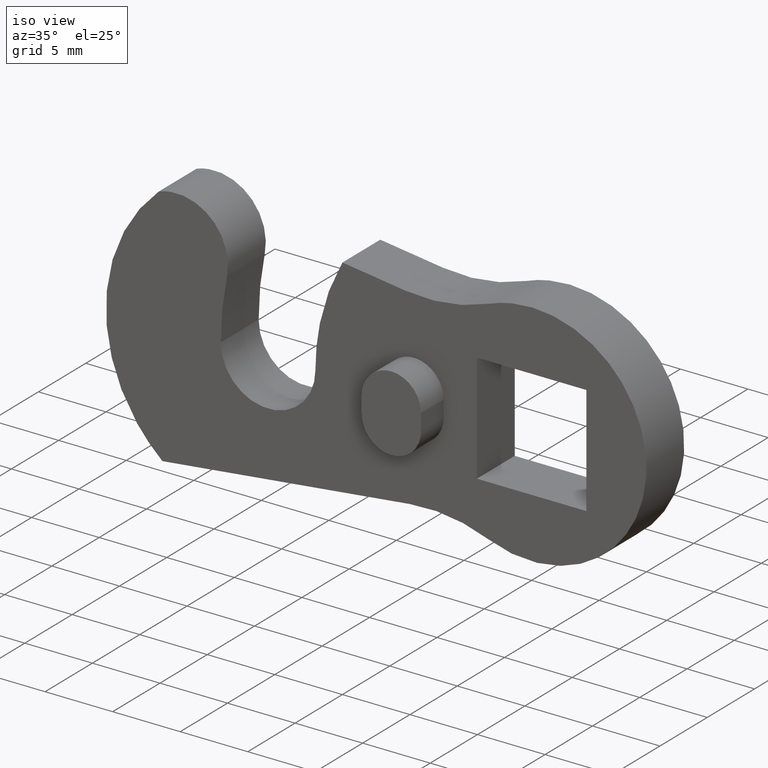
[diagram: clean part render]
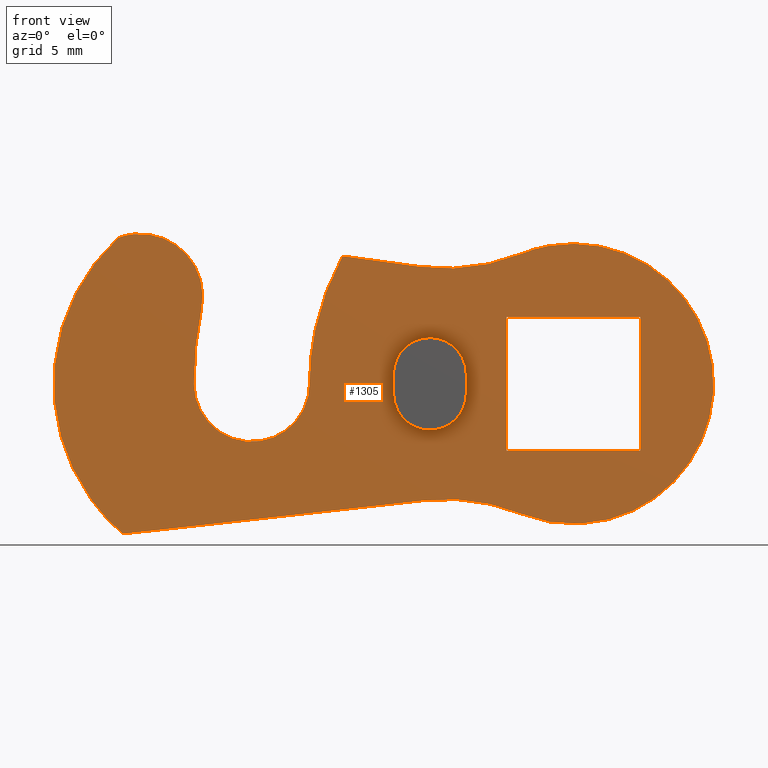
[diagram: tour spotlight — one face highlighted and labeled with its STEP entity id]
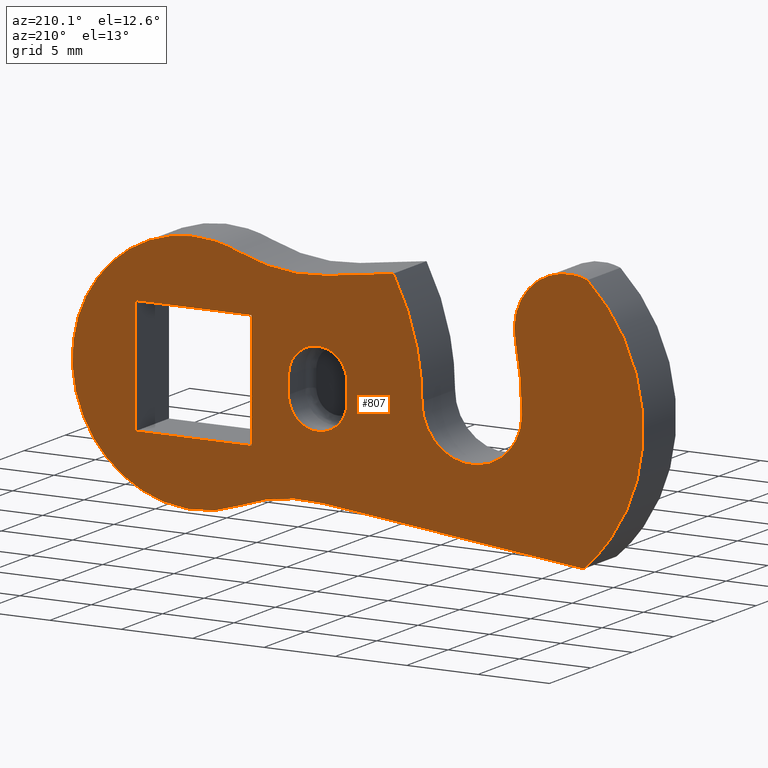
[diagram: tour spotlight — one face highlighted and labeled with its STEP entity id]
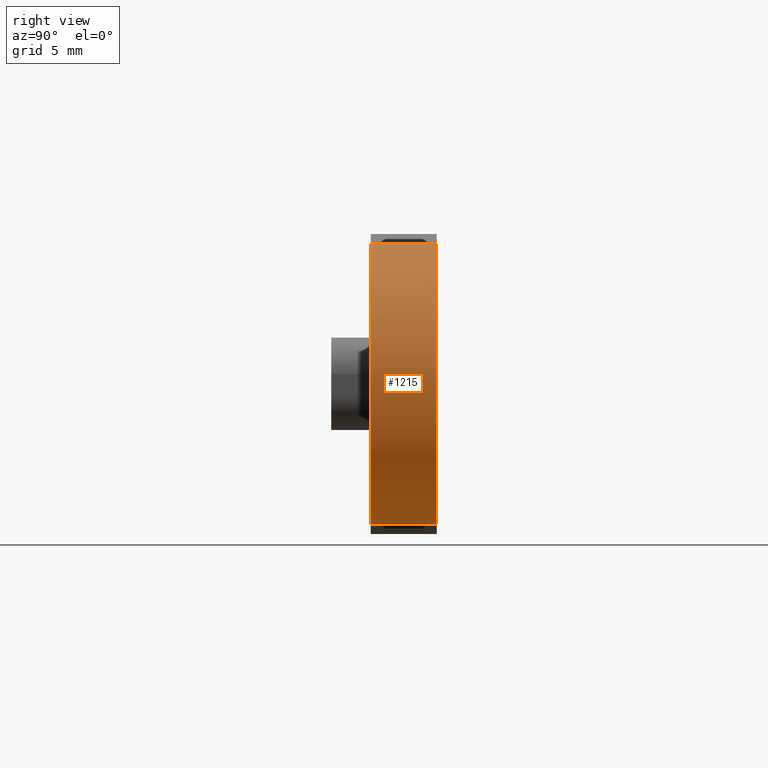
[diagram: tour spotlight — one face highlighted and labeled with its STEP entity id]
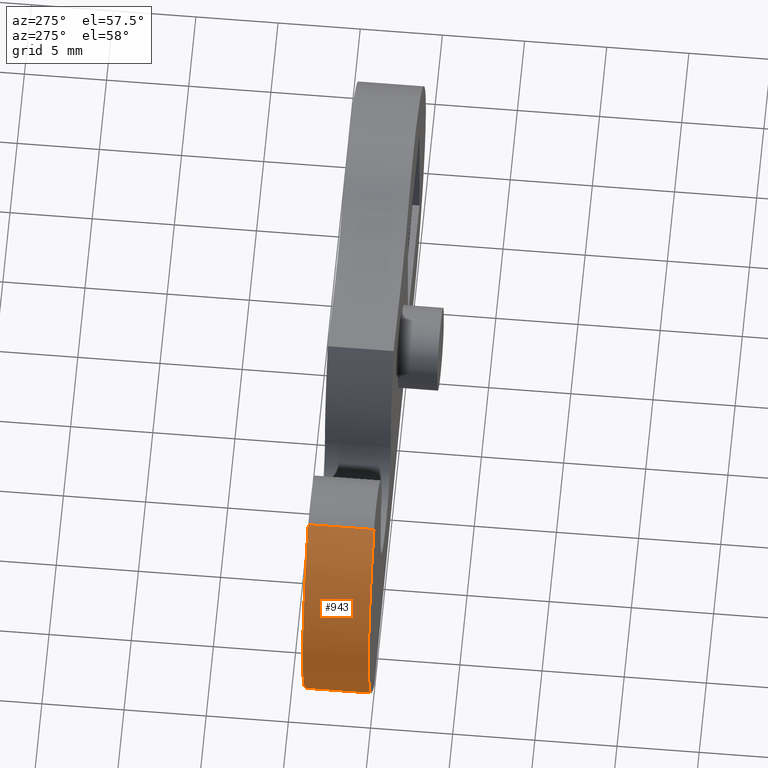
[diagram: tour spotlight — one face highlighted and labeled with its STEP entity id]
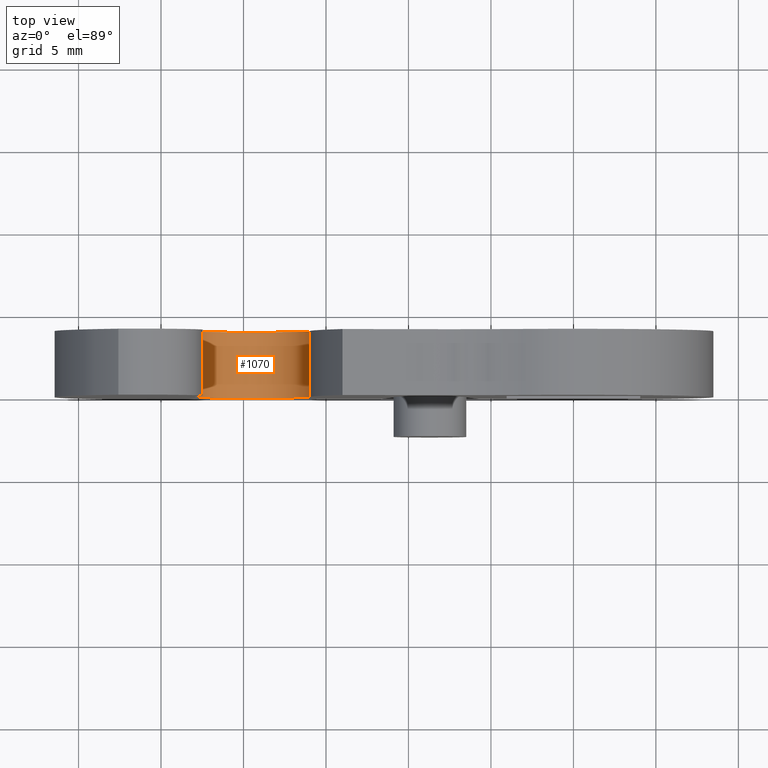
[diagram: tour spotlight — one face highlighted and labeled with its STEP entity id]
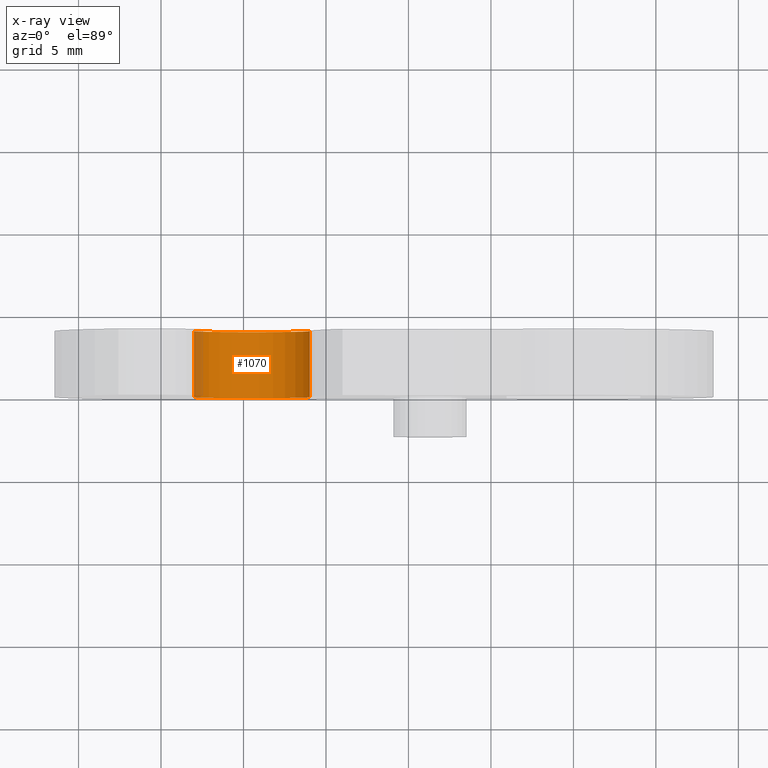
[diagram: x-ray of the same camera — body ghosted, this tour face saturated]
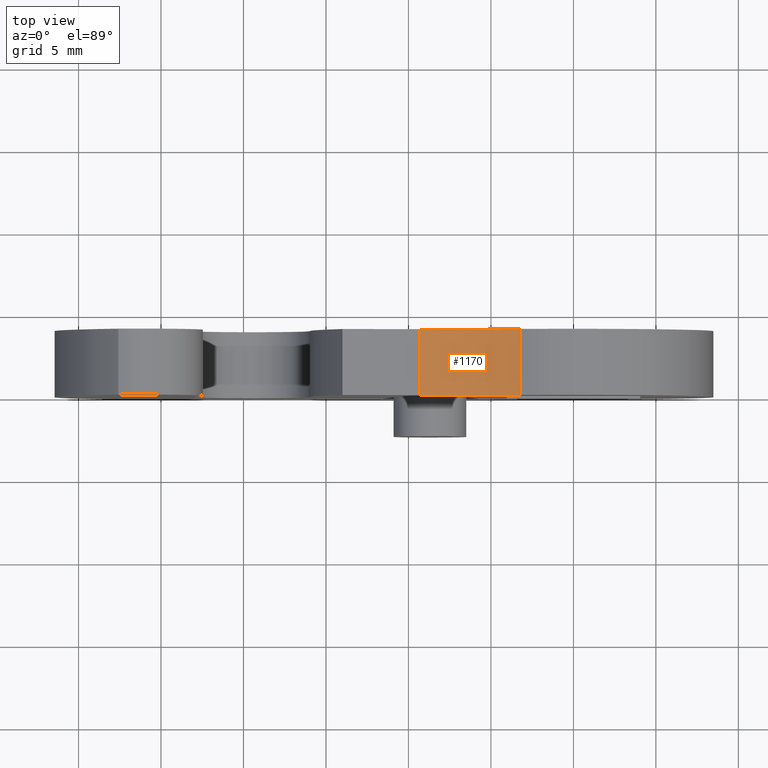
[diagram: tour spotlight — one face highlighted and labeled with its STEP entity id]
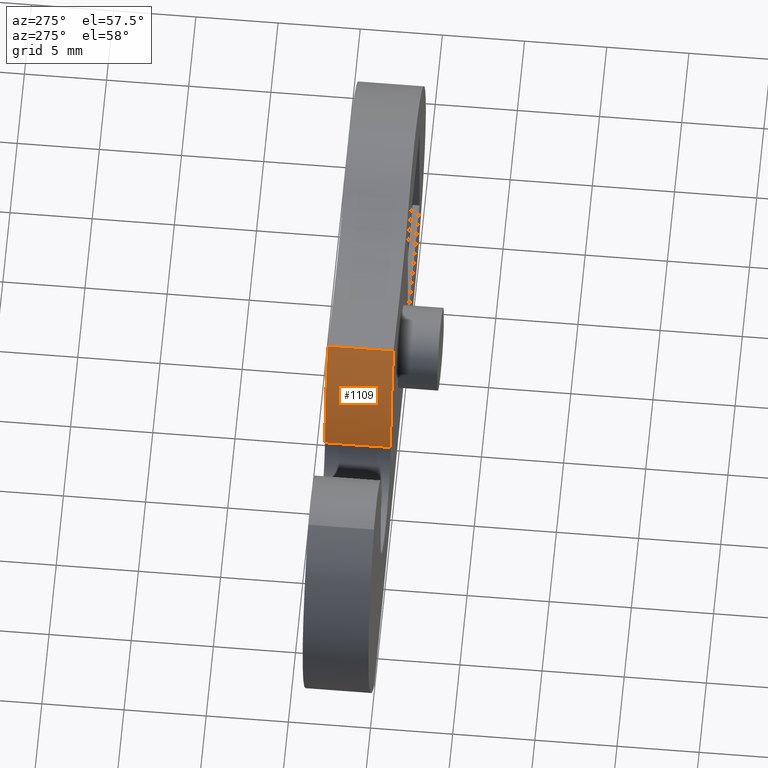
[diagram: tour spotlight — one face highlighted and labeled with its STEP entity id]
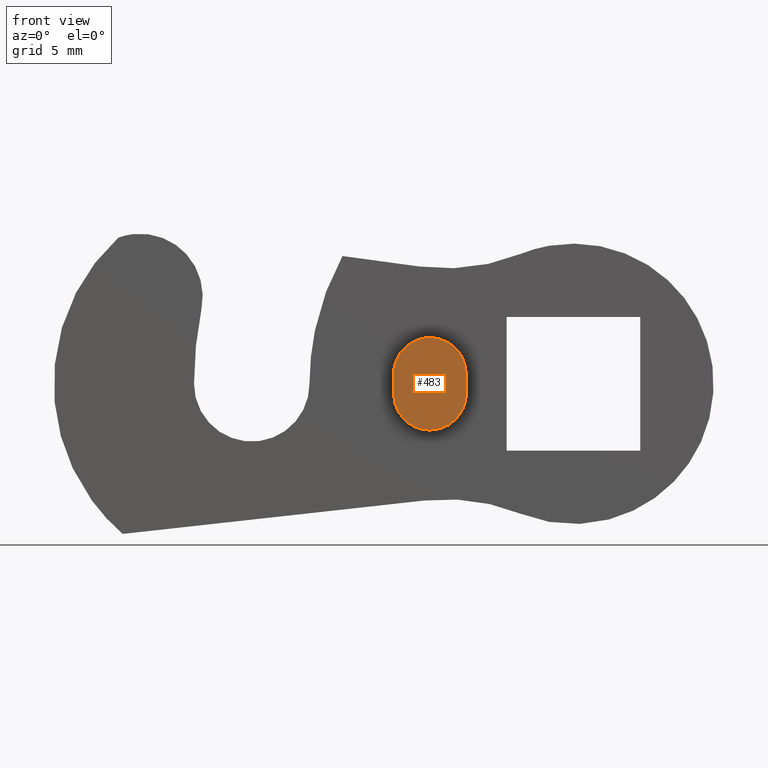
[diagram: tour spotlight — one face highlighted and labeled with its STEP entity id]
A machine part: a face-by-face anatomy tour. The part has 30 B-rep faces; the first image is the clean iso view, then the 8 largest visible faces are spotlighted one at a time (largest first), each with its STEP entity span.

Face 1 — front view, entity #1305. In plain terms, the highlighted face is a freeform B-spline surface patch.
Definition (entity closure, byte-faithful):
#502=CARTESIAN_POINT('',(-10.900000517722200,0.0,-0.600000028498485));
#503=VERTEX_POINT('',#502);
#504=CARTESIAN_POINT('',(-6.500000308733420,0.0,-0.600000028498486));
#505=VERTEX_POINT('',#504);
#506=CARTESIAN_POINT('',(-10.900000517722210,0.0,-0.600000028498485));
#507=CARTESIAN_POINT('',(-10.900000517722205,0.0,-2.800000132992881));
#508=CARTESIAN_POINT('',(-8.700000413227810,0.0,-2.800000132992880));
#509=CARTESIAN_POINT('',(-6.500000308733416,0.0,-2.800000132992881));
#510=CARTESIAN_POINT('',(-6.500000308733416,0.0,-0.600000028498485));
#518=(BOUNDED_CURVE()B_SPLINE_CURVE(2,(#506,#507,#508,#509,#510),.UNSPECIFIED.,.F.,.U.)B_SPLINE_CURVE_WITH_KNOTS((3,2,3),(0.0,0.500000000000000,1.0),.UNSPECIFIED.)CURVE()GEOMETRIC_REPRESENTATION_ITEM()RATIONAL_B_SPLINE_CURVE((1.0,0.707106781186548,1.0,0.707106781186548,1.0))REPRESENTATION_ITEM(''));
#519=EDGE_CURVE('',#503,#505,#518,.T.);
#540=CARTESIAN_POINT('',(-10.900000517722200,0.0,0.600000028498457));
#541=VERTEX_POINT('',#540);
#542=CARTESIAN_POINT('',(-10.900000517722200,0.0,0.600000028498457));
#543=CARTESIAN_POINT('',(-10.900000517722200,0.0,-0.600000028498485));
#544=QUASI_UNIFORM_CURVE('',1,(#542,#543),.UNSPECIFIED.,.F.,.U.);
#545=EDGE_CURVE('',#541,#503,#544,.T.);
#575=CARTESIAN_POINT('',(-6.500000308733430,0.0,0.600000028498457));
#576=VERTEX_POINT('',#575);
#577=CARTESIAN_POINT('',(-6.500000308733426,0.0,0.600000028498457));
#578=CARTESIAN_POINT('',(-6.500000308733426,0.0,2.800000132992842));
#579=CARTESIAN_POINT('',(-8.700000413227810,0.0,2.800000132992842));
#580=CARTESIAN_POINT('',(-10.900000517722194,0.0,2.800000132992842));
#581=CARTESIAN_POINT('',(-10.900000517722191,0.0,0.600000028498457));
#589=(BOUNDED_CURVE()B_SPLINE_CURVE(2,(#577,#578,#579,#580,#581),.UNSPECIFIED.,.F.,.U.)B_SPLINE_CURVE_WITH_KNOTS((3,2,3),(0.0,0.500000000000000,1.0),.UNSPECIFIED.)CURVE()GEOMETRIC_REPRESENTATION_ITEM()RATIONAL_B_SPLINE_CURVE((1.0,0.707106781186547,1.0,0.707106781186547,1.0))REPRESENTATION_ITEM(''));
#590=EDGE_CURVE('',#576,#541,#589,.T.);
#607=CARTESIAN_POINT('',(-6.500000308733420,0.0,-0.600000028498486));
#608=CARTESIAN_POINT('',(-6.500000308733430,0.0,0.600000028498457));
#609=QUASI_UNIFORM_CURVE('',1,(#607,#608),.UNSPECIFIED.,.F.,.U.);
#610=EDGE_CURVE('',#505,#576,#609,.T.);
#813=CARTESIAN_POINT('',(4.050000192364680,0.0,-4.050000192364680));
#814=VERTEX_POINT('',#813);
#815=CARTESIAN_POINT('',(-4.050000192364665,0.0,-4.050000192364690));
#816=VERTEX_POINT('',#815);
#817=CARTESIAN_POINT('',(4.050000192364680,0.0,-4.050000192364680));
#818=CARTESIAN_POINT('',(-4.050000192364665,0.0,-4.050000192364690));
#819=QUASI_UNIFORM_CURVE('',1,(#817,#818),.UNSPECIFIED.,.F.,.U.);
#820=EDGE_CURVE('',#814,#816,#819,.T.);
#850=CARTESIAN_POINT('',(-3.191605924908355,0.0,-7.878049154674630));
#851=VERTEX_POINT('',#850);
#852=CARTESIAN_POINT('',(-9.018262071894240,0.0,-7.072916441609590));
#853=VERTEX_POINT('',#852);
#854=CARTESIAN_POINT('',(-3.191605924908361,0.0,-7.878049154674652));
#855=CARTESIAN_POINT('',(-6.003167672268203,0.0,-6.739011182845041));
#856=CARTESIAN_POINT('',(-9.018262071894240,0.0,-7.072916441609590));
#864=(BOUNDED_CURVE()B_SPLINE_CURVE(2,(#854,#855,#856),.UNSPECIFIED.,.F.,.U.)CURVE()GEOMETRIC_REPRESENTATION_ITEM()QUASI_UNIFORM_CURVE()RATIONAL_B_SPLINE_CURVE((1.0,0.969501807510952,1.0))REPRESENTATION_ITEM(''));
#865=EDGE_CURVE('',#851,#853,#864,.T.);
#886=CARTESIAN_POINT('',(-27.322405020386050,0.0,-9.100000432227068));
#887=VERTEX_POINT('',#886);
#888=CARTESIAN_POINT('',(-27.322405020386050,0.0,-9.100000432227068));
#889=CARTESIAN_POINT('',(-9.018262071894240,0.0,-7.072916441609590));
#890=QUASI_UNIFORM_CURVE('',1,(#888,#889),.UNSPECIFIED.,.F.,.U.);
#891=EDGE_CURVE('',#887,#853,#890,.T.);
#917=CARTESIAN_POINT('',(-27.588748733254949,0.0,8.864094572663710));
#918=VERTEX_POINT('',#917);
#919=CARTESIAN_POINT('',(-27.588748733254949,0.0,8.864094572663710));
#920=CARTESIAN_POINT('',(-31.578760255066737,0.0,5.223091345249449));
#921=CARTESIAN_POINT('',(-31.498682772231380,0.0,-0.177897827390562));
#922=CARTESIAN_POINT('',(-31.418605289396009,0.0,-5.578887000030570));
#923=CARTESIAN_POINT('',(-27.322405020386039,0.0,-9.100000432227047));
#931=(BOUNDED_CURVE()B_SPLINE_CURVE(2,(#919,#920,#921,#922,#923),.UNSPECIFIED.,.F.,.U.)B_SPLINE_CURVE_WITH_KNOTS((3,2,3),(0.0,0.500000000000000,1.0),.UNSPECIFIED.)CURVE()GEOMETRIC_REPRESENTATION_ITEM()RATIONAL_B_SPLINE_CURVE((1.0,0.911876497854046,1.0,0.911876497854046,1.0))REPRESENTATION_ITEM(''));
#932=EDGE_CURVE('',#918,#887,#931,.T.);
#958=CARTESIAN_POINT('',(-22.545756322395651,0.0,4.548507678729610));
#959=VERTEX_POINT('',#958);
#960=CARTESIAN_POINT('',(-22.545756322395651,0.0,4.548507678729610));
#961=CARTESIAN_POINT('',(-22.104412871510750,0.0,6.736131093015298));
#962=CARTESIAN_POINT('',(-23.800003801249868,0.0,8.187148544101389));
#963=CARTESIAN_POINT('',(-25.495594730988987,0.0,9.638165995187480));
#964=CARTESIAN_POINT('',(-27.588748733254949,0.0,8.864094572663721));
#972=(BOUNDED_CURVE()B_SPLINE_CURVE(2,(#960,#961,#962,#963,#964),.UNSPECIFIED.,.F.,.U.)B_SPLINE_CURVE_WITH_KNOTS((3,2,3),(0.0,0.500000000000000,1.0),.UNSPECIFIED.)CURVE()GEOMETRIC_REPRESENTATION_ITEM()RATIONAL_B_SPLINE_CURVE((1.0,0.862290535424148,1.0,0.862290535424148,1.0))REPRESENTATION_ITEM(''));
#973=EDGE_CURVE('',#959,#918,#972,.T.);
#999=CARTESIAN_POINT('',(-23.000001092441401,0.0,-5.727203E-014));
#1000=VERTEX_POINT('',#999);
#1001=CARTESIAN_POINT('',(-22.545756322395640,0.0,4.548507678729605));
#1002=CARTESIAN_POINT('',(-23.000001092441394,0.0,2.296935818344305));
#1003=CARTESIAN_POINT('',(-23.000001092441401,0.0,-5.727203E-014));
#1011=(BOUNDED_CURVE()B_SPLINE_CURVE(2,(#1001,#1002,#1003),.UNSPECIFIED.,.F.,.U.)CURVE()GEOMETRIC_REPRESENTATION_ITEM()QUASI_UNIFORM_CURVE()RATIONAL_B_SPLINE_CURVE((1.0,0.995050307353196,1.0))REPRESENTATION_ITEM(''));
#1012=EDGE_CURVE('',#959,#1000,#1011,.T.);
#1042=CARTESIAN_POINT('',(-16.000000759959200,0.0,1.959370E-015));
#1043=VERTEX_POINT('',#1042);
#1044=CARTESIAN_POINT('',(-23.000001092441369,0.0,-5.684342E-014));
#1045=CARTESIAN_POINT('',(-23.000001092441366,0.0,-2.020726038143088));
#1046=CARTESIAN_POINT('',(-21.250001009320819,0.0,-3.031089057214592));
#1047=CARTESIAN_POINT('',(-19.500000926200272,0.0,-4.041452076286098));
#1048=CARTESIAN_POINT('',(-17.750000843079729,0.0,-3.031089057214563));
#1049=CARTESIAN_POINT('',(-16.000000759959235,0.0,-2.020726038143048));
#1050=CARTESIAN_POINT('',(-16.000000759959200,0.0,1.959370E-015));
#1058=(BOUNDED_CURVE()B_SPLINE_CURVE(2,(#1044,#1045,#1046,#1047,#1048,#1049,#1050),.UNSPECIFIED.,.F.,.U.)B_SPLINE_CURVE_WITH_KNOTS((3,2,2,3),(0.0,0.333333333333333,0.666666666666667,1.0),.UNSPECIFIED.)CURVE()GEOMETRIC_REPRESENTATION_ITEM()RATIONAL_B_SPLINE_CURVE((1.0,0.866025403784437,1.0,0.866025403784437,1.0,0.866025403784437,1.0))REPRESENTATION_ITEM(''));
#1059=EDGE_CURVE('',#1000,#1043,#1058,.T.);
#1085=CARTESIAN_POINT('',(-13.998497258809200,0.0,7.748683682652581));
#1086=VERTEX_POINT('',#1085);
#1087=CARTESIAN_POINT('',(-13.998497258809200,0.0,7.748683682652583));
#1088=CARTESIAN_POINT('',(-16.000000759959200,0.0,4.132838408561590));
#1089=CARTESIAN_POINT('',(-16.000000759959200,0.0,0.0));
#1097=(BOUNDED_CURVE()B_SPLINE_CURVE(2,(#1087,#1088,#1089),.UNSPECIFIED.,.F.,.U.)CURVE()GEOMETRIC_REPRESENTATION_ITEM()QUASI_UNIFORM_CURVE()RATIONAL_B_SPLINE_CURVE((1.0,0.968221575136541,1.0))REPRESENTATION_ITEM(''));
#1098=EDGE_CURVE('',#1086,#1043,#1097,.T.);
#1115=CARTESIAN_POINT('',(-9.320007165965649,0.0,7.110208311423781));
#1116=VERTEX_POINT('',#1115);
#1117=CARTESIAN_POINT('',(-9.320007165965649,0.0,7.110208311423781));
#1118=CARTESIAN_POINT('',(-13.998497258809200,0.0,7.748683682652581));
#1119=QUASI_UNIFORM_CURVE('',1,(#1117,#1118),.UNSPECIFIED.,.F.,.U.);
#1120=EDGE_CURVE('',#1116,#1086,#1119,.T.);
#1146=CARTESIAN_POINT('',(-3.191605924907725,0.0,7.878049154674891));
#1147=VERTEX_POINT('',#1146);
#1148=CARTESIAN_POINT('',(-9.320007165965652,0.0,7.110208311423760));
#1149=CARTESIAN_POINT('',(-6.153562302074830,0.0,6.678082343465817));
#1150=CARTESIAN_POINT('',(-3.191605924907721,0.0,7.878049154674877));
#1158=(BOUNDED_CURVE()B_SPLINE_CURVE(2,(#1148,#1149,#1150),.UNSPECIFIED.,.F.,.U.)CURVE()GEOMETRIC_REPRESENTATION_ITEM()QUASI_UNIFORM_CURVE()RATIONAL_B_SPLINE_CURVE((1.0,0.966319192480719,1.0))REPRESENTATION_ITEM(''));
#1159=EDGE_CURVE('',#1116,#1147,#1158,.T.);
#1193=CARTESIAN_POINT('',(-3.191605924908355,0.0,-7.878049154674630));
#1194=CARTESIAN_POINT('',(2.821033584562678,0.0,-10.313928330597276));
#1195=CARTESIAN_POINT('',(6.756902208942012,0.0,-5.156964165298855));
#1196=CARTESIAN_POINT('',(10.692770833321351,0.0,-4.328135E-013));
#1197=CARTESIAN_POINT('',(6.756902208942432,0.0,5.156964165298307));
#1198=CARTESIAN_POINT('',(2.821033584563517,0.0,10.313928330597047));
#1199=CARTESIAN_POINT('',(-3.191605924907725,0.0,7.878049154674891));
#1207=(BOUNDED_CURVE()B_SPLINE_CURVE(2,(#1193,#1194,#1195,#1196,#1197,#1198,#1199),.UNSPECIFIED.,.F.,.U.)B_SPLINE_CURVE_WITH_KNOTS((3,2,2,3),(0.0,0.333333333333333,0.666666666666667,1.0),.UNSPECIFIED.)CURVE()GEOMETRIC_REPRESENTATION_ITEM()RATIONAL_B_SPLINE_CURVE((1.0,0.794929633883129,1.0,0.794929633883129,1.0,0.794929633883129,1.0))REPRESENTATION_ITEM(''));
#1208=EDGE_CURVE('',#851,#1147,#1207,.T.);
#1221=CARTESIAN_POINT('',(4.050000192364680,0.0,4.050000192364680));
#1222=VERTEX_POINT('',#1221);
#1223=CARTESIAN_POINT('',(4.050000192364680,0.0,4.050000192364680));
#1224=CARTESIAN_POINT('',(4.050000192364680,0.0,-4.050000192364680));
#1225=QUASI_UNIFORM_CURVE('',1,(#1223,#1224),.UNSPECIFIED.,.F.,.U.);
#1226=EDGE_CURVE('',#1222,#814,#1225,.T.);
#1243=CARTESIAN_POINT('',(-4.050000192364665,0.0,4.050000192364680));
#1244=VERTEX_POINT('',#1243);
#1245=CARTESIAN_POINT('',(-4.050000192364665,0.0,4.050000192364680));
#1246=CARTESIAN_POINT('',(4.050000192364680,0.0,4.050000192364680));
#1247=QUASI_UNIFORM_CURVE('',1,(#1245,#1246),.UNSPECIFIED.,.F.,.U.);
#1248=EDGE_CURVE('',#1244,#1222,#1247,.T.);
#1265=CARTESIAN_POINT('',(-4.050000192364665,0.0,-4.050000192364690));
#1266=CARTESIAN_POINT('',(-4.050000192364665,0.0,4.050000192364680));
#1267=QUASI_UNIFORM_CURVE('',1,(#1265,#1266),.UNSPECIFIED.,.F.,.U.);
#1268=EDGE_CURVE('',#816,#1244,#1267,.T.);
#1276=CARTESIAN_POINT('',(-33.497997931178297,0.0,10.009090491500480));
#1277=CARTESIAN_POINT('',(10.498001323524891,0.0,10.009090491500480));
#1278=CARTESIAN_POINT('',(-33.497997931178297,0.0,-10.009090930677150));
#1279=CARTESIAN_POINT('',(10.498001323524891,0.0,-10.009090930677150));
#1280=B_SPLINE_SURFACE_WITH_KNOTS('',1,1,((#1276,#1278),(#1277,#1279)),.UNSPECIFIED.,.F.,.F.,.U.,(2,2),(2,2),(0.0,43.995999254703193),(0.0,20.018181422177630),.UNSPECIFIED.);
#1281=ORIENTED_EDGE('',*,*,#1208,.T.);
#1282=ORIENTED_EDGE('',*,*,#1159,.F.);
#1283=ORIENTED_EDGE('',*,*,#1120,.T.);
#1284=ORIENTED_EDGE('',*,*,#1098,.T.);
#1285=ORIENTED_EDGE('',*,*,#1059,.F.);
#1286=ORIENTED_EDGE('',*,*,#1012,.F.);
#1287=ORIENTED_EDGE('',*,*,#973,.T.);
#1288=ORIENTED_EDGE('',*,*,#932,.T.);
#1289=ORIENTED_EDGE('',*,*,#891,.T.);
#1290=ORIENTED_EDGE('',*,*,#865,.F.);
#1291=EDGE_LOOP('',(#1281,#1282,#1283,#1284,#1285,#1286,#1287,#1288,#1289,#1290));
#1292=FACE_OUTER_BOUND('',#1291,.T.);
#1293=ORIENTED_EDGE('',*,*,#1268,.T.);
#1294=ORIENTED_EDGE('',*,*,#1248,.T.);
#1295=ORIENTED_EDGE('',*,*,#1226,.T.);
#1296=ORIENTED_EDGE('',*,*,#820,.T.);
#1297=EDGE_LOOP('',(#1293,#1294,#1295,#1296));
#1298=FACE_BOUND('',#1297,.T.);
#1299=ORIENTED_EDGE('',*,*,#590,.F.);
#1300=ORIENTED_EDGE('',*,*,#610,.F.);
#1301=ORIENTED_EDGE('',*,*,#519,.F.);
#1302=ORIENTED_EDGE('',*,*,#545,.F.);
#1303=EDGE_LOOP('',(#1299,#1300,#1301,#1302));
#1304=FACE_BOUND('',#1303,.T.);
#1305=ADVANCED_FACE('',(#1292,#1298,#1304),#1280,.F.);

Face 2 — auxiliary view, entity #807. In plain terms, the highlighted face is a freeform B-spline surface patch.
Definition (entity closure, byte-faithful):
#312=CARTESIAN_POINT('',(-10.750000510597561,4.000000189989585,-0.600000028498471));
#313=VERTEX_POINT('',#312);
#320=CARTESIAN_POINT('',(-6.650000315858031,4.000000189989585,-0.600000028498471));
#321=VERTEX_POINT('',#320);
#327=CARTESIAN_POINT('',(-10.750000510597570,4.000000189989585,-0.600000028498471));
#328=CARTESIAN_POINT('',(-10.750000510597570,4.000000189989585,-2.650000125868240));
#329=CARTESIAN_POINT('',(-8.700000413227800,4.000000189989585,-2.650000125868241));
#330=CARTESIAN_POINT('',(-6.650000315858031,4.000000189989585,-2.650000125868240));
#331=CARTESIAN_POINT('',(-6.650000315858031,4.000000189989585,-0.600000028498471));
#339=(BOUNDED_CURVE()B_SPLINE_CURVE(2,(#327,#328,#329,#330,#331),.UNSPECIFIED.,.F.,.U.)B_SPLINE_CURVE_WITH_KNOTS((3,2,3),(0.0,0.500000000000000,1.0),.UNSPECIFIED.)CURVE()GEOMETRIC_REPRESENTATION_ITEM()RATIONAL_B_SPLINE_CURVE((1.0,0.707106781186548,1.0,0.707106781186548,1.0))REPRESENTATION_ITEM(''));
#340=EDGE_CURVE('',#313,#321,#339,.T.);
#352=CARTESIAN_POINT('',(-6.650000315858031,4.000000189989585,0.600000028498471));
#353=VERTEX_POINT('',#352);
#359=CARTESIAN_POINT('',(-6.650000315858031,4.000000189989585,0.600000028498471));
#360=CARTESIAN_POINT('',(-6.650000315858031,4.000000189989585,-0.600000028498471));
#361=QUASI_UNIFORM_CURVE('',1,(#359,#360),.UNSPECIFIED.,.F.,.U.);
#362=EDGE_CURVE('',#353,#321,#361,.T.);
#387=CARTESIAN_POINT('',(-10.750000510597561,4.000000189989585,0.600000028498471));
#388=VERTEX_POINT('',#387);
#394=CARTESIAN_POINT('',(-6.650000315858031,4.000000189989585,0.600000028498471));
#395=CARTESIAN_POINT('',(-6.650000315858031,4.000000189989585,2.650000125868240));
#396=CARTESIAN_POINT('',(-8.700000413227800,4.000000189989585,2.650000125868241));
#397=CARTESIAN_POINT('',(-10.750000510597570,4.000000189989585,2.650000125868240));
#398=CARTESIAN_POINT('',(-10.750000510597570,4.000000189989585,0.600000028498471));
#406=(BOUNDED_CURVE()B_SPLINE_CURVE(2,(#394,#395,#396,#397,#398),.UNSPECIFIED.,.F.,.U.)B_SPLINE_CURVE_WITH_KNOTS((3,2,3),(0.0,0.500000000000000,1.0),.UNSPECIFIED.)CURVE()GEOMETRIC_REPRESENTATION_ITEM()RATIONAL_B_SPLINE_CURVE((1.0,0.707106781186548,1.0,0.707106781186548,1.0))REPRESENTATION_ITEM(''));
#407=EDGE_CURVE('',#353,#388,#406,.T.);
#420=CARTESIAN_POINT('',(-10.750000510597561,4.000000189989585,-0.600000028498471));
#421=CARTESIAN_POINT('',(-10.750000510597561,4.000000189989585,0.600000028498471));
#422=QUASI_UNIFORM_CURVE('',1,(#420,#421),.UNSPECIFIED.,.F.,.U.);
#423=EDGE_CURVE('',#313,#388,#422,.T.);
#618=CARTESIAN_POINT('',(-33.497997927217767,4.000000189989605,10.009090410902310));
#619=CARTESIAN_POINT('',(10.498001323336480,4.000000189989605,10.009090410902310));
#620=CARTESIAN_POINT('',(-33.497997927217767,4.000000189989605,-10.009090926842800));
#621=CARTESIAN_POINT('',(10.498001323336480,4.000000189989605,-10.009090926842800));
#622=B_SPLINE_SURFACE_WITH_KNOTS('',1,1,((#618,#620),(#619,#621)),.UNSPECIFIED.,.F.,.F.,.U.,(2,2),(2,2),(0.0,43.995999250554263),(0.0,20.018181337745109),.UNSPECIFIED.);
#623=CARTESIAN_POINT('',(-3.191605924908355,4.000000189989585,-7.878049154674630));
#624=VERTEX_POINT('',#623);
#625=CARTESIAN_POINT('',(-3.191605924907725,4.000000189989585,7.878049154674891));
#626=VERTEX_POINT('',#625);
#627=CARTESIAN_POINT('',(-3.191605924908355,4.000000189989585,-7.878049154674630));
#628=CARTESIAN_POINT('',(2.821033584562678,4.000000189989585,-10.313928330597276));
#629=CARTESIAN_POINT('',(6.756902208942012,4.000000189989585,-5.156964165298855));
#630=CARTESIAN_POINT('',(10.692770833321351,4.000000189989585,-4.328135E-013));
#631=CARTESIAN_POINT('',(6.756902208942432,4.000000189989585,5.156964165298307));
#632=CARTESIAN_POINT('',(2.821033584563517,4.000000189989585,10.313928330597047));
#633=CARTESIAN_POINT('',(-3.191605924907725,4.000000189989585,7.878049154674891));
#641=(BOUNDED_CURVE()B_SPLINE_CURVE(2,(#627,#628,#629,#630,#631,#632,#633),.UNSPECIFIED.,.F.,.U.)B_SPLINE_CURVE_WITH_KNOTS((3,2,2,3),(0.0,0.333333333333333,0.666666666666667,1.0),.UNSPECIFIED.)CURVE()GEOMETRIC_REPRESENTATION_ITEM()RATIONAL_B_SPLINE_CURVE((1.0,0.794929633883129,1.0,0.794929633883129,1.0,0.794929633883129,1.0))REPRESENTATION_ITEM(''));
#642=EDGE_CURVE('',#624,#626,#641,.T.);
#643=ORIENTED_EDGE('',*,*,#642,.F.);
#644=CARTESIAN_POINT('',(-9.018262071894240,4.000000189989585,-7.072916441609590));
#645=VERTEX_POINT('',#644);
#646=CARTESIAN_POINT('',(-3.191605924908361,4.000000189989585,-7.878049154674652));
#647=CARTESIAN_POINT('',(-6.003167672268203,4.000000189989586,-6.739011182845041));
#648=CARTESIAN_POINT('',(-9.018262071894240,4.000000189989585,-7.072916441609590));
#656=(BOUNDED_CURVE()B_SPLINE_CURVE(2,(#646,#647,#648),.UNSPECIFIED.,.F.,.U.)CURVE()GEOMETRIC_REPRESENTATION_ITEM()QUASI_UNIFORM_CURVE()RATIONAL_B_SPLINE_CURVE((1.0,0.969501807510952,1.0))REPRESENTATION_ITEM(''));
#657=EDGE_CURVE('',#624,#645,#656,.T.);
#658=ORIENTED_EDGE('',*,*,#657,.T.);
#659=CARTESIAN_POINT('',(-27.322405020386050,4.000000189989585,-9.100000432227068));
#660=VERTEX_POINT('',#659);
#661=CARTESIAN_POINT('',(-27.322405020386050,4.000000189989585,-9.100000432227068));
#662=CARTESIAN_POINT('',(-9.018262071894240,4.000000189989585,-7.072916441609590));
#663=QUASI_UNIFORM_CURVE('',1,(#661,#662),.UNSPECIFIED.,.F.,.U.);
#664=EDGE_CURVE('',#660,#645,#663,.T.);
#665=ORIENTED_EDGE('',*,*,#664,.F.);
#666=CARTESIAN_POINT('',(-27.588748733254949,4.000000189989585,8.864094572663710));
#667=VERTEX_POINT('',#666);
#668=CARTESIAN_POINT('',(-27.588748733254949,4.000000189989585,8.864094572663710));
#669=CARTESIAN_POINT('',(-31.578760255066737,4.000000189989585,5.223091345249449));
#670=CARTESIAN_POINT('',(-31.498682772231380,4.000000189989585,-0.177897827390562));
#671=CARTESIAN_POINT('',(-31.418605289396009,4.000000189989585,-5.578887000030570));
#672=CARTESIAN_POINT('',(-27.322405020386039,4.000000189989585,-9.100000432227047));
#680=(BOUNDED_CURVE()B_SPLINE_CURVE(2,(#668,#669,#670,#671,#672),.UNSPECIFIED.,.F.,.U.)B_SPLINE_CURVE_WITH_KNOTS((3,2,3),(0.0,0.500000000000000,1.0),.UNSPECIFIED.)CURVE()GEOMETRIC_REPRESENTATION_ITEM()RATIONAL_B_SPLINE_CURVE((1.0,0.911876497854046,1.0,0.911876497854046,1.0))REPRESENTATION_ITEM(''));
#681=EDGE_CURVE('',#667,#660,#680,.T.);
#682=ORIENTED_EDGE('',*,*,#681,.F.);
#683=CARTESIAN_POINT('',(-22.545756322395651,4.000000189989585,4.548507678729610));
#684=VERTEX_POINT('',#683);
#685=CARTESIAN_POINT('',(-22.545756322395651,4.000000189989585,4.548507678729610));
#686=CARTESIAN_POINT('',(-22.104412871510750,4.000000189989585,6.736131093015298));
#687=CARTESIAN_POINT('',(-23.800003801249868,4.000000189989585,8.187148544101389));
#688=CARTESIAN_POINT('',(-25.495594730988987,4.000000189989585,9.638165995187480));
#689=CARTESIAN_POINT('',(-27.588748733254949,4.000000189989585,8.864094572663721));
#697=(BOUNDED_CURVE()B_SPLINE_CURVE(2,(#685,#686,#687,#688,#689),.UNSPECIFIED.,.F.,.U.)B_SPLINE_CURVE_WITH_KNOTS((3,2,3),(0.0,0.500000000000000,1.0),.UNSPECIFIED.)CURVE()GEOMETRIC_REPRESENTATION_ITEM()RATIONAL_B_SPLINE_CURVE((1.0,0.862290535424148,1.0,0.862290535424148,1.0))REPRESENTATION_ITEM(''));
#698=EDGE_CURVE('',#684,#667,#697,.T.);
#699=ORIENTED_EDGE('',*,*,#698,.F.);
#700=CARTESIAN_POINT('',(-23.000001092441401,4.000000189989585,-5.727203E-014));
#701=VERTEX_POINT('',#700);
#702=CARTESIAN_POINT('',(-22.545756322395640,4.000000189989585,4.548507678729605));
#703=CARTESIAN_POINT('',(-23.000001092441394,4.000000189989585,2.296935818344305));
#704=CARTESIAN_POINT('',(-23.000001092441401,4.000000189989585,-5.727203E-014));
#712=(BOUNDED_CURVE()B_SPLINE_CURVE(2,(#702,#703,#704),.UNSPECIFIED.,.F.,.U.)CURVE()GEOMETRIC_REPRESENTATION_ITEM()QUASI_UNIFORM_CURVE()RATIONAL_B_SPLINE_CURVE((1.0,0.995050307353196,1.0))REPRESENTATION_ITEM(''));
#713=EDGE_CURVE('',#684,#701,#712,.T.);
#714=ORIENTED_EDGE('',*,*,#713,.T.);
#715=CARTESIAN_POINT('',(-16.000000759959200,4.000000189989585,1.959370E-015));
#716=VERTEX_POINT('',#715);
#717=CARTESIAN_POINT('',(-23.000001092441369,4.000000189989585,-5.684342E-014));
#718=CARTESIAN_POINT('',(-23.000001092441366,4.000000189989585,-2.020726038143088));
#719=CARTESIAN_POINT('',(-21.250001009320819,4.000000189989585,-3.031089057214592));
#720=CARTESIAN_POINT('',(-19.500000926200272,4.000000189989585,-4.041452076286098));
#721=CARTESIAN_POINT('',(-17.750000843079729,4.000000189989585,-3.031089057214563));
#722=CARTESIAN_POINT('',(-16.000000759959235,4.000000189989585,-2.020726038143048));
#723=CARTESIAN_POINT('',(-16.000000759959200,4.000000189989585,1.959370E-015));
#731=(BOUNDED_CURVE()B_SPLINE_CURVE(2,(#717,#718,#719,#720,#721,#722,#723),.UNSPECIFIED.,.F.,.U.)B_SPLINE_CURVE_WITH_KNOTS((3,2,2,3),(0.0,0.333333333333333,0.666666666666667,1.0),.UNSPECIFIED.)CURVE()GEOMETRIC_REPRESENTATION_ITEM()RATIONAL_B_SPLINE_CURVE((1.0,0.866025403784437,1.0,0.866025403784437,1.0,0.866025403784437,1.0))REPRESENTATION_ITEM(''));
#732=EDGE_CURVE('',#701,#716,#731,.T.);
#733=ORIENTED_EDGE('',*,*,#732,.T.);
#734=CARTESIAN_POINT('',(-13.998497258809200,4.000000189989585,7.748683682652581));
#735=VERTEX_POINT('',#734);
#736=CARTESIAN_POINT('',(-13.998497258809200,4.000000189989585,7.748683682652583));
#737=CARTESIAN_POINT('',(-16.000000759959200,4.000000189989585,4.132838408561590));
#738=CARTESIAN_POINT('',(-16.000000759959200,4.000000189989585,0.0));
#746=(BOUNDED_CURVE()B_SPLINE_CURVE(2,(#736,#737,#738),.UNSPECIFIED.,.F.,.U.)CURVE()GEOMETRIC_REPRESENTATION_ITEM()QUASI_UNIFORM_CURVE()RATIONAL_B_SPLINE_CURVE((1.0,0.968221575136541,1.0))REPRESENTATION_ITEM(''));
#747=EDGE_CURVE('',#735,#716,#746,.T.);
#748=ORIENTED_EDGE('',*,*,#747,.F.);
#749=CARTESIAN_POINT('',(-9.320007165965649,4.000000189989585,7.110208311423781));
#750=VERTEX_POINT('',#749);
#751=CARTESIAN_POINT('',(-9.320007165965649,4.000000189989585,7.110208311423781));
#752=CARTESIAN_POINT('',(-13.998497258809200,4.000000189989585,7.748683682652581));
#753=QUASI_UNIFORM_CURVE('',1,(#751,#752),.UNSPECIFIED.,.F.,.U.);
#754=EDGE_CURVE('',#750,#735,#753,.T.);
#755=ORIENTED_EDGE('',*,*,#754,.F.);
#756=CARTESIAN_POINT('',(-9.320007165965652,4.000000189989585,7.110208311423760));
#757=CARTESIAN_POINT('',(-6.153562302074830,4.000000189989585,6.678082343465817));
#758=CARTESIAN_POINT('',(-3.191605924907721,4.000000189989585,7.878049154674877));
#766=(BOUNDED_CURVE()B_SPLINE_CURVE(2,(#756,#757,#758),.UNSPECIFIED.,.F.,.U.)CURVE()GEOMETRIC_REPRESENTATION_ITEM()QUASI_UNIFORM_CURVE()RATIONAL_B_SPLINE_CURVE((1.0,0.966319192480719,1.0))REPRESENTATION_ITEM(''));
#767=EDGE_CURVE('',#750,#626,#766,.T.);
#768=ORIENTED_EDGE('',*,*,#767,.T.);
#769=EDGE_LOOP('',(#643,#658,#665,#682,#699,#714,#733,#748,#755,#768));
#770=FACE_OUTER_BOUND('',#769,.T.);
#771=CARTESIAN_POINT('',(-4.050000192364665,4.000000189989585,-4.050000192364690));
#772=VERTEX_POINT('',#771);
#773=CARTESIAN_POINT('',(-4.050000192364665,4.000000189989585,4.050000192364680));
#774=VERTEX_POINT('',#773);
#775=CARTESIAN_POINT('',(-4.050000192364665,4.000000189989585,-4.050000192364690));
#776=CARTESIAN_POINT('',(-4.050000192364665,4.000000189989585,4.050000192364680));
#777=QUASI_UNIFORM_CURVE('',1,(#775,#776),.UNSPECIFIED.,.F.,.U.);
#778=EDGE_CURVE('',#772,#774,#777,.T.);
#779=ORIENTED_EDGE('',*,*,#778,.F.);
#780=CARTESIAN_POINT('',(4.050000192364680,4.000000189989585,-4.050000192364680));
#781=VERTEX_POINT('',#780);
#782=CARTESIAN_POINT('',(4.050000192364680,4.000000189989585,-4.050000192364680));
#783=CARTESIAN_POINT('',(-4.050000192364665,4.000000189989585,-4.050000192364690));
#784=QUASI_UNIFORM_CURVE('',1,(#782,#783),.UNSPECIFIED.,.F.,.U.);
#785=EDGE_CURVE('',#781,#772,#784,.T.);
#786=ORIENTED_EDGE('',*,*,#785,.F.);
#787=CARTESIAN_POINT('',(4.050000192364680,4.000000189989585,4.050000192364680));
#788=VERTEX_POINT('',#787);
#789=CARTESIAN_POINT('',(4.050000192364680,4.000000189989585,4.050000192364680));
#790=CARTESIAN_POINT('',(4.050000192364680,4.000000189989585,-4.050000192364680));
#791=QUASI_UNIFORM_CURVE('',1,(#789,#790),.UNSPECIFIED.,.F.,.U.);
#792=EDGE_CURVE('',#788,#781,#791,.T.);
#793=ORIENTED_EDGE('',*,*,#792,.F.);
#794=CARTESIAN_POINT('',(-4.050000192364665,4.000000189989585,4.050000192364680));
#795=CARTESIAN_POINT('',(4.050000192364680,4.000000189989585,4.050000192364680));
#796=QUASI_UNIFORM_CURVE('',1,(#794,#795),.UNSPECIFIED.,.F.,.U.);
#797=EDGE_CURVE('',#774,#788,#796,.T.);
#798=ORIENTED_EDGE('',*,*,#797,.F.);
#799=EDGE_LOOP('',(#779,#786,#793,#798));
#800=FACE_BOUND('',#799,.T.);
#801=ORIENTED_EDGE('',*,*,#407,.T.);
#802=ORIENTED_EDGE('',*,*,#423,.F.);
#803=ORIENTED_EDGE('',*,*,#340,.T.);
#804=ORIENTED_EDGE('',*,*,#362,.F.);
#805=EDGE_LOOP('',(#801,#802,#803,#804));
#806=FACE_BOUND('',#805,.T.);
#807=ADVANCED_FACE('',(#770,#800,#806),#622,.T.);

Face 3 — right view, entity #1215. In plain terms, the highlighted face is a freeform B-spline surface patch.
Definition (entity closure, byte-faithful):
#623=CARTESIAN_POINT('',(-3.191605924908355,4.000000189989585,-7.878049154674630));
#624=VERTEX_POINT('',#623);
#625=CARTESIAN_POINT('',(-3.191605924907725,4.000000189989585,7.878049154674891));
#626=VERTEX_POINT('',#625);
#627=CARTESIAN_POINT('',(-3.191605924908355,4.000000189989585,-7.878049154674630));
#628=CARTESIAN_POINT('',(2.821033584562678,4.000000189989585,-10.313928330597276));
#629=CARTESIAN_POINT('',(6.756902208942012,4.000000189989585,-5.156964165298855));
#630=CARTESIAN_POINT('',(10.692770833321351,4.000000189989585,-4.328135E-013));
#631=CARTESIAN_POINT('',(6.756902208942432,4.000000189989585,5.156964165298307));
#632=CARTESIAN_POINT('',(2.821033584563517,4.000000189989585,10.313928330597047));
#633=CARTESIAN_POINT('',(-3.191605924907725,4.000000189989585,7.878049154674891));
#641=(BOUNDED_CURVE()B_SPLINE_CURVE(2,(#627,#628,#629,#630,#631,#632,#633),.UNSPECIFIED.,.F.,.U.)B_SPLINE_CURVE_WITH_KNOTS((3,2,2,3),(0.0,0.333333333333333,0.666666666666667,1.0),.UNSPECIFIED.)CURVE()GEOMETRIC_REPRESENTATION_ITEM()RATIONAL_B_SPLINE_CURVE((1.0,0.794929633883129,1.0,0.794929633883129,1.0,0.794929633883129,1.0))REPRESENTATION_ITEM(''));
#642=EDGE_CURVE('',#624,#626,#641,.T.);
#850=CARTESIAN_POINT('',(-3.191605924908355,0.0,-7.878049154674630));
#851=VERTEX_POINT('',#850);
#873=CARTESIAN_POINT('',(-3.191605924908355,4.000000189989585,-7.878049154674630));
#874=CARTESIAN_POINT('',(-3.191605924908355,0.0,-7.878049154674630));
#875=QUASI_UNIFORM_CURVE('',1,(#873,#874),.UNSPECIFIED.,.F.,.U.);
#876=EDGE_CURVE('',#624,#851,#875,.T.);
#1146=CARTESIAN_POINT('',(-3.191605924907725,0.0,7.878049154674891));
#1147=VERTEX_POINT('',#1146);
#1161=CARTESIAN_POINT('',(-3.191605924907725,4.000000189989585,7.878049154674891));
#1162=CARTESIAN_POINT('',(-3.191605924907725,0.0,7.878049154674891));
#1163=QUASI_UNIFORM_CURVE('',1,(#1161,#1162),.UNSPECIFIED.,.F.,.U.);
#1164=EDGE_CURVE('',#626,#1147,#1163,.T.);
#1171=CARTESIAN_POINT('',(-3.517578408154086,4.100000194739325,7.738000323460193));
#1172=CARTESIAN_POINT('',(-3.517578408154086,-0.102500004868483,7.738000323460193));
#1173=CARTESIAN_POINT('',(2.637504972313425,4.100000194739325,10.536008529001199));
#1174=CARTESIAN_POINT('',(2.637504972313425,-0.102500004868483,10.536008529001199));
#1175=CARTESIAN_POINT('',(6.748392904826602,4.100000194739325,5.168094432715783));
#1176=CARTESIAN_POINT('',(6.748392904826602,-0.102500004868483,5.168094432715783));
#1177=CARTESIAN_POINT('',(10.859280837339780,4.100000194739325,-0.199819663569633));
#1178=CARTESIAN_POINT('',(10.859280837339780,-0.102500004868483,-0.199819663569633));
#1179=CARTESIAN_POINT('',(6.553694606288895,4.100000194739325,-5.412863740284041));
#1180=CARTESIAN_POINT('',(6.553694606288895,-0.102500004868483,-5.412863740284041));
#1181=CARTESIAN_POINT('',(2.248108375238010,4.100000194739325,-10.625907816998449));
#1182=CARTESIAN_POINT('',(2.248108375238010,-0.102500004868483,-10.625907816998449));
#1183=CARTESIAN_POINT('',(-3.799871881761820,4.100000194739325,-7.603353243508930));
#1184=CARTESIAN_POINT('',(-3.799871881761820,-0.102500004868483,-7.603353243508930));
#1192=(BOUNDED_SURFACE()B_SPLINE_SURFACE(1,2,((#1171,#1173,#1175,#1177,#1179,#1181,#1183),(#1172,#1174,#1176,#1178,#1180,#1182,#1184)),.UNSPECIFIED.,.F.,.F.,.U.)B_SPLINE_SURFACE_WITH_KNOTS((2,2),(3,2,2,3),(0.0,4.202500199607808),(0.0,11.873332100285340,23.746664200570692,35.619996300856030),.UNSPECIFIED.)GEOMETRIC_REPRESENTATION_ITEM()RATIONAL_B_SPLINE_SURFACE(((1.0,0.782608156852414,1.0,0.782608156852414,1.0,0.782608156852414,1.0),(1.0,0.782608156852414,1.0,0.782608156852414,1.0,0.782608156852414,1.0)))REPRESENTATION_ITEM('')SURFACE());
#1193=CARTESIAN_POINT('',(-3.191605924908355,0.0,-7.878049154674630));
#1194=CARTESIAN_POINT('',(2.821033584562678,0.0,-10.313928330597276));
#1195=CARTESIAN_POINT('',(6.756902208942012,0.0,-5.156964165298855));
#1196=CARTESIAN_POINT('',(10.692770833321351,0.0,-4.328135E-013));
#1197=CARTESIAN_POINT('',(6.756902208942432,0.0,5.156964165298307));
#1198=CARTESIAN_POINT('',(2.821033584563517,0.0,10.313928330597047));
#1199=CARTESIAN_POINT('',(-3.191605924907725,0.0,7.878049154674891));
#1207=(BOUNDED_CURVE()B_SPLINE_CURVE(2,(#1193,#1194,#1195,#1196,#1197,#1198,#1199),.UNSPECIFIED.,.F.,.U.)B_SPLINE_CURVE_WITH_KNOTS((3,2,2,3),(0.0,0.333333333333333,0.666666666666667,1.0),.UNSPECIFIED.)CURVE()GEOMETRIC_REPRESENTATION_ITEM()RATIONAL_B_SPLINE_CURVE((1.0,0.794929633883129,1.0,0.794929633883129,1.0,0.794929633883129,1.0))REPRESENTATION_ITEM(''));
#1208=EDGE_CURVE('',#851,#1147,#1207,.T.);
#1209=ORIENTED_EDGE('',*,*,#1208,.F.);
#1210=ORIENTED_EDGE('',*,*,#876,.F.);
#1211=ORIENTED_EDGE('',*,*,#642,.T.);
#1212=ORIENTED_EDGE('',*,*,#1164,.T.);
#1213=EDGE_LOOP('',(#1209,#1210,#1211,#1212));
#1214=FACE_OUTER_BOUND('',#1213,.T.);
#1215=ADVANCED_FACE('',(#1214),#1192,.T.);

Face 4 — auxiliary view, entity #943. In plain terms, the highlighted face is a freeform B-spline surface patch.
Definition (entity closure, byte-faithful):
#659=CARTESIAN_POINT('',(-27.322405020386050,4.000000189989585,-9.100000432227068));
#660=VERTEX_POINT('',#659);
#666=CARTESIAN_POINT('',(-27.588748733254949,4.000000189989585,8.864094572663710));
#667=VERTEX_POINT('',#666);
#668=CARTESIAN_POINT('',(-27.588748733254949,4.000000189989585,8.864094572663710));
#669=CARTESIAN_POINT('',(-31.578760255066737,4.000000189989585,5.223091345249449));
#670=CARTESIAN_POINT('',(-31.498682772231380,4.000000189989585,-0.177897827390562));
#671=CARTESIAN_POINT('',(-31.418605289396009,4.000000189989585,-5.578887000030570));
#672=CARTESIAN_POINT('',(-27.322405020386039,4.000000189989585,-9.100000432227047));
#680=(BOUNDED_CURVE()B_SPLINE_CURVE(2,(#668,#669,#670,#671,#672),.UNSPECIFIED.,.F.,.U.)B_SPLINE_CURVE_WITH_KNOTS((3,2,3),(0.0,0.500000000000000,1.0),.UNSPECIFIED.)CURVE()GEOMETRIC_REPRESENTATION_ITEM()RATIONAL_B_SPLINE_CURVE((1.0,0.911876497854046,1.0,0.911876497854046,1.0))REPRESENTATION_ITEM(''));
#681=EDGE_CURVE('',#667,#660,#680,.T.);
#886=CARTESIAN_POINT('',(-27.322405020386050,0.0,-9.100000432227068));
#887=VERTEX_POINT('',#886);
#893=CARTESIAN_POINT('',(-27.322405020386050,4.000000189989585,-9.100000432227068));
#894=CARTESIAN_POINT('',(-27.322405020386050,0.0,-9.100000432227068));
#895=QUASI_UNIFORM_CURVE('',1,(#893,#894),.UNSPECIFIED.,.F.,.U.);
#896=EDGE_CURVE('',#660,#887,#895,.T.);
#903=CARTESIAN_POINT('',(-27.071138022768530,4.100000194739325,-9.310096494893838));
#904=CARTESIAN_POINT('',(-27.071138022768530,-0.102500004868483,-9.310096494893838));
#905=CARTESIAN_POINT('',(-38.725848716653815,4.100000194739326,0.167722830893043));
#906=CARTESIAN_POINT('',(-38.725848716653815,-0.102500004868483,0.167722830893043));
#907=CARTESIAN_POINT('',(-26.907558861141126,4.100000194739326,9.440767930616707));
#908=CARTESIAN_POINT('',(-26.907558861141126,-0.102500004868483,9.440767930616707));
#916=(BOUNDED_SURFACE()B_SPLINE_SURFACE(1,2,((#903,#905,#907),(#904,#906,#908)),.UNSPECIFIED.,.F.,.F.,.U.)B_SPLINE_SURFACE_WITH_KNOTS((2,2),(3,3),(0.0,4.202500199607808),(0.0,23.091135284406420),.UNSPECIFIED.)GEOMETRIC_REPRESENTATION_ITEM()RATIONAL_B_SPLINE_SURFACE(((1.0,0.623513762083524,0.998007038063756),(1.0,0.623513762083524,0.998007038063756)))REPRESENTATION_ITEM('')SURFACE());
#917=CARTESIAN_POINT('',(-27.588748733254949,0.0,8.864094572663710));
#918=VERTEX_POINT('',#917);
#919=CARTESIAN_POINT('',(-27.588748733254949,0.0,8.864094572663710));
#920=CARTESIAN_POINT('',(-31.578760255066737,0.0,5.223091345249449));
#921=CARTESIAN_POINT('',(-31.498682772231380,0.0,-0.177897827390562));
#922=CARTESIAN_POINT('',(-31.418605289396009,0.0,-5.578887000030570));
#923=CARTESIAN_POINT('',(-27.322405020386039,0.0,-9.100000432227047));
#931=(BOUNDED_CURVE()B_SPLINE_CURVE(2,(#919,#920,#921,#922,#923),.UNSPECIFIED.,.F.,.U.)B_SPLINE_CURVE_WITH_KNOTS((3,2,3),(0.0,0.500000000000000,1.0),.UNSPECIFIED.)CURVE()GEOMETRIC_REPRESENTATION_ITEM()RATIONAL_B_SPLINE_CURVE((1.0,0.911876497854046,1.0,0.911876497854046,1.0))REPRESENTATION_ITEM(''));
#932=EDGE_CURVE('',#918,#887,#931,.T.);
#933=ORIENTED_EDGE('',*,*,#932,.F.);
#934=CARTESIAN_POINT('',(-27.588748733254949,4.000000189989585,8.864094572663710));
#935=CARTESIAN_POINT('',(-27.588748733254949,0.0,8.864094572663710));
#936=QUASI_UNIFORM_CURVE('',1,(#934,#935),.UNSPECIFIED.,.F.,.U.);
#937=EDGE_CURVE('',#667,#918,#936,.T.);
#938=ORIENTED_EDGE('',*,*,#937,.F.);
#939=ORIENTED_EDGE('',*,*,#681,.T.);
#940=ORIENTED_EDGE('',*,*,#896,.T.);
#941=EDGE_LOOP('',(#933,#938,#939,#940));
#942=FACE_OUTER_BOUND('',#941,.T.);
#943=ADVANCED_FACE('',(#942),#916,.T.);

Face 5 — top view, entity #1070. An x-ray twin of the same camera follows (body ghosted, this face saturated) — the face is partly hidden behind the body. In plain terms, the highlighted face is a freeform B-spline surface patch.
Definition (entity closure, byte-faithful):
#700=CARTESIAN_POINT('',(-23.000001092441401,4.000000189989585,-5.727203E-014));
#701=VERTEX_POINT('',#700);
#715=CARTESIAN_POINT('',(-16.000000759959200,4.000000189989585,1.959370E-015));
#716=VERTEX_POINT('',#715);
#717=CARTESIAN_POINT('',(-23.000001092441369,4.000000189989585,-5.684342E-014));
#718=CARTESIAN_POINT('',(-23.000001092441366,4.000000189989585,-2.020726038143088));
#719=CARTESIAN_POINT('',(-21.250001009320819,4.000000189989585,-3.031089057214592));
#720=CARTESIAN_POINT('',(-19.500000926200272,4.000000189989585,-4.041452076286098));
#721=CARTESIAN_POINT('',(-17.750000843079729,4.000000189989585,-3.031089057214563));
#722=CARTESIAN_POINT('',(-16.000000759959235,4.000000189989585,-2.020726038143048));
#723=CARTESIAN_POINT('',(-16.000000759959200,4.000000189989585,1.959370E-015));
#731=(BOUNDED_CURVE()B_SPLINE_CURVE(2,(#717,#718,#719,#720,#721,#722,#723),.UNSPECIFIED.,.F.,.U.)B_SPLINE_CURVE_WITH_KNOTS((3,2,2,3),(0.0,0.333333333333333,0.666666666666667,1.0),.UNSPECIFIED.)CURVE()GEOMETRIC_REPRESENTATION_ITEM()RATIONAL_B_SPLINE_CURVE((1.0,0.866025403784437,1.0,0.866025403784437,1.0,0.866025403784437,1.0))REPRESENTATION_ITEM(''));
#732=EDGE_CURVE('',#701,#716,#731,.T.);
#999=CARTESIAN_POINT('',(-23.000001092441401,0.0,-5.727203E-014));
#1000=VERTEX_POINT('',#999);
#1014=CARTESIAN_POINT('',(-23.000001092441401,4.000000189989585,-5.727203E-014));
#1015=CARTESIAN_POINT('',(-23.000001092441401,0.0,-5.727203E-014));
#1016=QUASI_UNIFORM_CURVE('',1,(#1014,#1015),.UNSPECIFIED.,.F.,.U.);
#1017=EDGE_CURVE('',#701,#1000,#1016,.T.);
#1024=CARTESIAN_POINT('',(-16.001200122601752,4.100000194739326,0.091619323429189));
#1025=CARTESIAN_POINT('',(-16.001200122601752,-0.102500004868483,0.091619323429189));
#1026=CARTESIAN_POINT('',(-15.904653500480320,4.100000194739325,-3.595347425720025));
#1027=CARTESIAN_POINT('',(-15.904653500480320,-0.102500004868483,-3.595347425720025));
#1028=CARTESIAN_POINT('',(-19.591620249629539,4.100000194739326,-3.498800803598609));
#1029=CARTESIAN_POINT('',(-19.591620249629539,-0.102500004868483,-3.498800803598609));
#1030=CARTESIAN_POINT('',(-23.278586998778742,4.100000194739325,-3.402254181477194));
#1031=CARTESIAN_POINT('',(-23.278586998778742,-0.102500004868483,-3.402254181477194));
#1032=CARTESIAN_POINT('',(-22.989211759994848,4.100000194739326,0.274606848090521));
#1033=CARTESIAN_POINT('',(-22.989211759994848,-0.102500004868483,0.274606848090521));
#1041=(BOUNDED_SURFACE()B_SPLINE_SURFACE(1,2,((#1024,#1026,#1028,#1030,#1032),(#1025,#1027,#1029,#1031,#1033)),.UNSPECIFIED.,.F.,.F.,.U.)B_SPLINE_SURFACE_WITH_KNOTS((2,2),(3,2,3),(0.0,4.202500199607809),(0.0,6.014874969226907,12.029749938453810),.UNSPECIFIED.)GEOMETRIC_REPRESENTATION_ITEM()RATIONAL_B_SPLINE_SURFACE(((1.0,0.688354575693754,1.0,0.688354575693754,1.0),(1.0,0.688354575693754,1.0,0.688354575693754,1.0)))REPRESENTATION_ITEM('')SURFACE());
#1042=CARTESIAN_POINT('',(-16.000000759959200,0.0,1.959370E-015));
#1043=VERTEX_POINT('',#1042);
#1044=CARTESIAN_POINT('',(-23.000001092441369,0.0,-5.684342E-014));
#1045=CARTESIAN_POINT('',(-23.000001092441366,0.0,-2.020726038143088));
#1046=CARTESIAN_POINT('',(-21.250001009320819,0.0,-3.031089057214592));
#1047=CARTESIAN_POINT('',(-19.500000926200272,0.0,-4.041452076286098));
#1048=CARTESIAN_POINT('',(-17.750000843079729,0.0,-3.031089057214563));
#1049=CARTESIAN_POINT('',(-16.000000759959235,0.0,-2.020726038143048));
#1050=CARTESIAN_POINT('',(-16.000000759959200,0.0,1.959370E-015));
#1058=(BOUNDED_CURVE()B_SPLINE_CURVE(2,(#1044,#1045,#1046,#1047,#1048,#1049,#1050),.UNSPECIFIED.,.F.,.U.)B_SPLINE_CURVE_WITH_KNOTS((3,2,2,3),(0.0,0.333333333333333,0.666666666666667,1.0),.UNSPECIFIED.)CURVE()GEOMETRIC_REPRESENTATION_ITEM()RATIONAL_B_SPLINE_CURVE((1.0,0.866025403784437,1.0,0.866025403784437,1.0,0.866025403784437,1.0))REPRESENTATION_ITEM(''));
#1059=EDGE_CURVE('',#1000,#1043,#1058,.T.);
#1060=ORIENTED_EDGE('',*,*,#1059,.T.);
#1061=CARTESIAN_POINT('',(-16.000000759959200,4.000000189989585,1.959370E-015));
#1062=CARTESIAN_POINT('',(-16.000000759959200,0.0,1.959370E-015));
#1063=QUASI_UNIFORM_CURVE('',1,(#1061,#1062),.UNSPECIFIED.,.F.,.U.);
#1064=EDGE_CURVE('',#716,#1043,#1063,.T.);
#1065=ORIENTED_EDGE('',*,*,#1064,.F.);
#1066=ORIENTED_EDGE('',*,*,#732,.F.);
#1067=ORIENTED_EDGE('',*,*,#1017,.T.);
#1068=EDGE_LOOP('',(#1060,#1065,#1066,#1067));
#1069=FACE_OUTER_BOUND('',#1068,.T.);
#1070=ADVANCED_FACE('',(#1069),#1041,.F.);

Face 6 — top view, entity #1170. In plain terms, the highlighted face is a freeform B-spline surface patch.
Definition (entity closure, byte-faithful):
#625=CARTESIAN_POINT('',(-3.191605924907725,4.000000189989585,7.878049154674891));
#626=VERTEX_POINT('',#625);
#749=CARTESIAN_POINT('',(-9.320007165965649,4.000000189989585,7.110208311423781));
#750=VERTEX_POINT('',#749);
#756=CARTESIAN_POINT('',(-9.320007165965652,4.000000189989585,7.110208311423760));
#757=CARTESIAN_POINT('',(-6.153562302074830,4.000000189989585,6.678082343465817));
#758=CARTESIAN_POINT('',(-3.191605924907721,4.000000189989585,7.878049154674877));
#766=(BOUNDED_CURVE()B_SPLINE_CURVE(2,(#756,#757,#758),.UNSPECIFIED.,.F.,.U.)CURVE()GEOMETRIC_REPRESENTATION_ITEM()QUASI_UNIFORM_CURVE()RATIONAL_B_SPLINE_CURVE((1.0,0.966319192480719,1.0))REPRESENTATION_ITEM(''));
#767=EDGE_CURVE('',#750,#626,#766,.T.);
#1115=CARTESIAN_POINT('',(-9.320007165965649,0.0,7.110208311423781));
#1116=VERTEX_POINT('',#1115);
#1122=CARTESIAN_POINT('',(-9.320007165965649,4.000000189989585,7.110208311423781));
#1123=CARTESIAN_POINT('',(-9.320007165965649,0.0,7.110208311423781));
#1124=QUASI_UNIFORM_CURVE('',1,(#1122,#1123),.UNSPECIFIED.,.F.,.U.);
#1125=EDGE_CURVE('',#750,#1116,#1124,.T.);
#1132=CARTESIAN_POINT('',(-2.908636836968733,4.100000194739324,7.996922384757677));
#1133=CARTESIAN_POINT('',(-2.908636836968733,-0.102500004868483,7.996922384757677));
#1134=CARTESIAN_POINT('',(-6.143500589941011,4.100000194739326,6.589043260741850));
#1135=CARTESIAN_POINT('',(-6.143500589941011,-0.102500004868483,6.589043260741850));
#1136=CARTESIAN_POINT('',(-9.625612977110297,4.100000194739325,7.155929890726779));
#1137=CARTESIAN_POINT('',(-9.625612977110297,-0.102500004868483,7.155929890726779));
#1145=(BOUNDED_SURFACE()B_SPLINE_SURFACE(1,2,((#1132,#1134,#1136),(#1133,#1135,#1137)),.UNSPECIFIED.,.F.,.F.,.U.)B_SPLINE_SURFACE_WITH_KNOTS((2,2),(3,3),(0.0,4.202500199607808),(0.0,6.909674295541016),.UNSPECIFIED.)GEOMETRIC_REPRESENTATION_ITEM()RATIONAL_B_SPLINE_SURFACE(((0.999425379450132,0.955460354898256,0.992380528164763),(0.999425379450132,0.955460354898256,0.992380528164763)))REPRESENTATION_ITEM('')SURFACE());
#1146=CARTESIAN_POINT('',(-3.191605924907725,0.0,7.878049154674891));
#1147=VERTEX_POINT('',#1146);
#1148=CARTESIAN_POINT('',(-9.320007165965652,0.0,7.110208311423760));
#1149=CARTESIAN_POINT('',(-6.153562302074830,0.0,6.678082343465817));
#1150=CARTESIAN_POINT('',(-3.191605924907721,0.0,7.878049154674877));
#1158=(BOUNDED_CURVE()B_SPLINE_CURVE(2,(#1148,#1149,#1150),.UNSPECIFIED.,.F.,.U.)CURVE()GEOMETRIC_REPRESENTATION_ITEM()QUASI_UNIFORM_CURVE()RATIONAL_B_SPLINE_CURVE((1.0,0.966319192480719,1.0))REPRESENTATION_ITEM(''));
#1159=EDGE_CURVE('',#1116,#1147,#1158,.T.);
#1160=ORIENTED_EDGE('',*,*,#1159,.T.);
#1161=CARTESIAN_POINT('',(-3.191605924907725,4.000000189989585,7.878049154674891));
#1162=CARTESIAN_POINT('',(-3.191605924907725,0.0,7.878049154674891));
#1163=QUASI_UNIFORM_CURVE('',1,(#1161,#1162),.UNSPECIFIED.,.F.,.U.);
#1164=EDGE_CURVE('',#626,#1147,#1163,.T.);
#1165=ORIENTED_EDGE('',*,*,#1164,.F.);
#1166=ORIENTED_EDGE('',*,*,#767,.F.);
#1167=ORIENTED_EDGE('',*,*,#1125,.T.);
#1168=EDGE_LOOP('',(#1160,#1165,#1166,#1167));
#1169=FACE_OUTER_BOUND('',#1168,.T.);
#1170=ADVANCED_FACE('',(#1169),#1145,.F.);

Face 7 — auxiliary view, entity #1109. In plain terms, the highlighted face is a freeform B-spline surface patch.
Definition (entity closure, byte-faithful):
#715=CARTESIAN_POINT('',(-16.000000759959200,4.000000189989585,1.959370E-015));
#716=VERTEX_POINT('',#715);
#734=CARTESIAN_POINT('',(-13.998497258809200,4.000000189989585,7.748683682652581));
#735=VERTEX_POINT('',#734);
#736=CARTESIAN_POINT('',(-13.998497258809200,4.000000189989585,7.748683682652583));
#737=CARTESIAN_POINT('',(-16.000000759959200,4.000000189989585,4.132838408561590));
#738=CARTESIAN_POINT('',(-16.000000759959200,4.000000189989585,0.0));
#746=(BOUNDED_CURVE()B_SPLINE_CURVE(2,(#736,#737,#738),.UNSPECIFIED.,.F.,.U.)CURVE()GEOMETRIC_REPRESENTATION_ITEM()QUASI_UNIFORM_CURVE()RATIONAL_B_SPLINE_CURVE((1.0,0.968221575136541,1.0))REPRESENTATION_ITEM(''));
#747=EDGE_CURVE('',#735,#716,#746,.T.);
#1042=CARTESIAN_POINT('',(-16.000000759959200,0.0,1.959370E-015));
#1043=VERTEX_POINT('',#1042);
#1061=CARTESIAN_POINT('',(-16.000000759959200,4.000000189989585,1.959370E-015));
#1062=CARTESIAN_POINT('',(-16.000000759959200,0.0,1.959370E-015));
#1063=QUASI_UNIFORM_CURVE('',1,(#1061,#1062),.UNSPECIFIED.,.F.,.U.);
#1064=EDGE_CURVE('',#716,#1043,#1063,.T.);
#1071=CARTESIAN_POINT('',(-15.995057791103905,4.100000194739326,-0.397681503141784));
#1072=CARTESIAN_POINT('',(-15.995057791103905,-0.102500004868483,-0.397681503141784));
#1073=CARTESIAN_POINT('',(-16.108432183192804,4.100000194739327,4.162324278285590));
#1074=CARTESIAN_POINT('',(-16.108432183192804,-0.102500004868483,4.162324278285590));
#1075=CARTESIAN_POINT('',(-13.800185975314498,4.100000194739326,8.096597517811283));
#1076=CARTESIAN_POINT('',(-13.800185975314498,-0.102500004868483,8.096597517811283));
#1084=(BOUNDED_SURFACE()B_SPLINE_SURFACE(1,2,((#1071,#1073,#1075),(#1072,#1074,#1076)),.UNSPECIFIED.,.F.,.F.,.U.)B_SPLINE_SURFACE_WITH_KNOTS((2,2),(3,3),(0.0,4.202500199607809),(0.0,8.944605557649156),.UNSPECIFIED.)GEOMETRIC_REPRESENTATION_ITEM()RATIONAL_B_SPLINE_SURFACE(((0.999706509476763,0.957940156584071,0.992522964679133),(0.999706509476763,0.957940156584071,0.992522964679133)))REPRESENTATION_ITEM('')SURFACE());
#1085=CARTESIAN_POINT('',(-13.998497258809200,0.0,7.748683682652581));
#1086=VERTEX_POINT('',#1085);
#1087=CARTESIAN_POINT('',(-13.998497258809200,0.0,7.748683682652583));
#1088=CARTESIAN_POINT('',(-16.000000759959200,0.0,4.132838408561590));
#1089=CARTESIAN_POINT('',(-16.000000759959200,0.0,0.0));
#1097=(BOUNDED_CURVE()B_SPLINE_CURVE(2,(#1087,#1088,#1089),.UNSPECIFIED.,.F.,.U.)CURVE()GEOMETRIC_REPRESENTATION_ITEM()QUASI_UNIFORM_CURVE()RATIONAL_B_SPLINE_CURVE((1.0,0.968221575136541,1.0))REPRESENTATION_ITEM(''));
#1098=EDGE_CURVE('',#1086,#1043,#1097,.T.);
#1099=ORIENTED_EDGE('',*,*,#1098,.F.);
#1100=CARTESIAN_POINT('',(-13.998497258809200,4.000000189989585,7.748683682652581));
#1101=CARTESIAN_POINT('',(-13.998497258809200,0.0,7.748683682652581));
#1102=QUASI_UNIFORM_CURVE('',1,(#1100,#1101),.UNSPECIFIED.,.F.,.U.);
#1103=EDGE_CURVE('',#735,#1086,#1102,.T.);
#1104=ORIENTED_EDGE('',*,*,#1103,.F.);
#1105=ORIENTED_EDGE('',*,*,#747,.T.);
#1106=ORIENTED_EDGE('',*,*,#1064,.T.);
#1107=EDGE_LOOP('',(#1099,#1104,#1105,#1106));
#1108=FACE_OUTER_BOUND('',#1107,.T.);
#1109=ADVANCED_FACE('',(#1108),#1084,.T.);

Face 8 — front view, entity #483. In plain terms, the highlighted face is a freeform B-spline surface patch.
Definition (entity closure, byte-faithful):
#428=CARTESIAN_POINT('',(-11.119780586521379,-2.400000113993900,-3.079720187993694));
#429=CARTESIAN_POINT('',(-6.280220515307740,-2.400000113993900,-3.079720187993694));
#430=CARTESIAN_POINT('',(-11.119780586521371,-2.400000113993900,3.079720288129463));
#431=CARTESIAN_POINT('',(-6.280220515307740,-2.400000113993900,3.079720288129463));
#432=B_SPLINE_SURFACE_WITH_KNOTS('',1,1,((#428,#430),(#429,#431)),.UNSPECIFIED.,.F.,.F.,.U.,(2,2),(2,2),(0.0,4.839560071213636),(0.0,6.159440476123157),.UNSPECIFIED.);
#433=CARTESIAN_POINT('',(-6.500000308733420,-2.400000113993885,-0.600000028498486));
#434=VERTEX_POINT('',#433);
#435=CARTESIAN_POINT('',(-6.500000308733430,-2.400000113993885,0.600000028498457));
#436=VERTEX_POINT('',#435);
#437=CARTESIAN_POINT('',(-6.500000308733420,-2.400000113993885,-0.600000028498486));
#438=CARTESIAN_POINT('',(-6.500000308733430,-2.400000113993885,0.600000028498457));
#439=QUASI_UNIFORM_CURVE('',1,(#437,#438),.UNSPECIFIED.,.F.,.U.);
#440=EDGE_CURVE('',#434,#436,#439,.T.);
#441=ORIENTED_EDGE('',*,*,#440,.T.);
#442=CARTESIAN_POINT('',(-10.900000517722200,-2.400000113993885,0.600000028498457));
#443=VERTEX_POINT('',#442);
#444=CARTESIAN_POINT('',(-6.500000308733426,-2.400000113993885,0.600000028498457));
#445=CARTESIAN_POINT('',(-6.500000308733426,-2.400000113993885,2.800000132992842));
#446=CARTESIAN_POINT('',(-8.700000413227810,-2.400000113993885,2.800000132992842));
#447=CARTESIAN_POINT('',(-10.900000517722194,-2.400000113993885,2.800000132992842));
#448=CARTESIAN_POINT('',(-10.900000517722191,-2.400000113993885,0.600000028498457));
#456=(BOUNDED_CURVE()B_SPLINE_CURVE(2,(#444,#445,#446,#447,#448),.UNSPECIFIED.,.F.,.U.)B_SPLINE_CURVE_WITH_KNOTS((3,2,3),(0.0,0.500000000000000,1.0),.UNSPECIFIED.)CURVE()GEOMETRIC_REPRESENTATION_ITEM()RATIONAL_B_SPLINE_CURVE((1.0,0.707106781186547,1.0,0.707106781186547,1.0))REPRESENTATION_ITEM(''));
#457=EDGE_CURVE('',#436,#443,#456,.T.);
#458=ORIENTED_EDGE('',*,*,#457,.T.);
#459=CARTESIAN_POINT('',(-10.900000517722219,-2.400000113993885,-0.600000028498485));
#460=VERTEX_POINT('',#459);
#461=CARTESIAN_POINT('',(-10.900000517722200,-2.400000113993885,0.600000028498457));
#462=CARTESIAN_POINT('',(-10.900000517722219,-2.400000113993885,-0.600000028498485));
#463=QUASI_UNIFORM_CURVE('',1,(#461,#462),.UNSPECIFIED.,.F.,.U.);
#464=EDGE_CURVE('',#443,#460,#463,.T.);
#465=ORIENTED_EDGE('',*,*,#464,.T.);
#466=CARTESIAN_POINT('',(-10.900000517722210,-2.400000113993885,-0.600000028498485));
#467=CARTESIAN_POINT('',(-10.900000517722205,-2.400000113993885,-2.800000132992881));
#468=CARTESIAN_POINT('',(-8.700000413227810,-2.400000113993885,-2.800000132992880));
#469=CARTESIAN_POINT('',(-6.500000308733416,-2.400000113993885,-2.800000132992881));
#470=CARTESIAN_POINT('',(-6.500000308733416,-2.400000113993885,-0.600000028498485));
#478=(BOUNDED_CURVE()B_SPLINE_CURVE(2,(#466,#467,#468,#469,#470),.UNSPECIFIED.,.F.,.U.)B_SPLINE_CURVE_WITH_KNOTS((3,2,3),(0.0,0.500000000000000,1.0),.UNSPECIFIED.)CURVE()GEOMETRIC_REPRESENTATION_ITEM()RATIONAL_B_SPLINE_CURVE((1.0,0.707106781186548,1.0,0.707106781186548,1.0))REPRESENTATION_ITEM(''));
#479=EDGE_CURVE('',#460,#434,#478,.T.);
#480=ORIENTED_EDGE('',*,*,#479,.T.);
#481=EDGE_LOOP('',(#441,#458,#465,#480));
#482=FACE_OUTER_BOUND('',#481,.T.);
#483=ADVANCED_FACE('',(#482),#432,.T.);